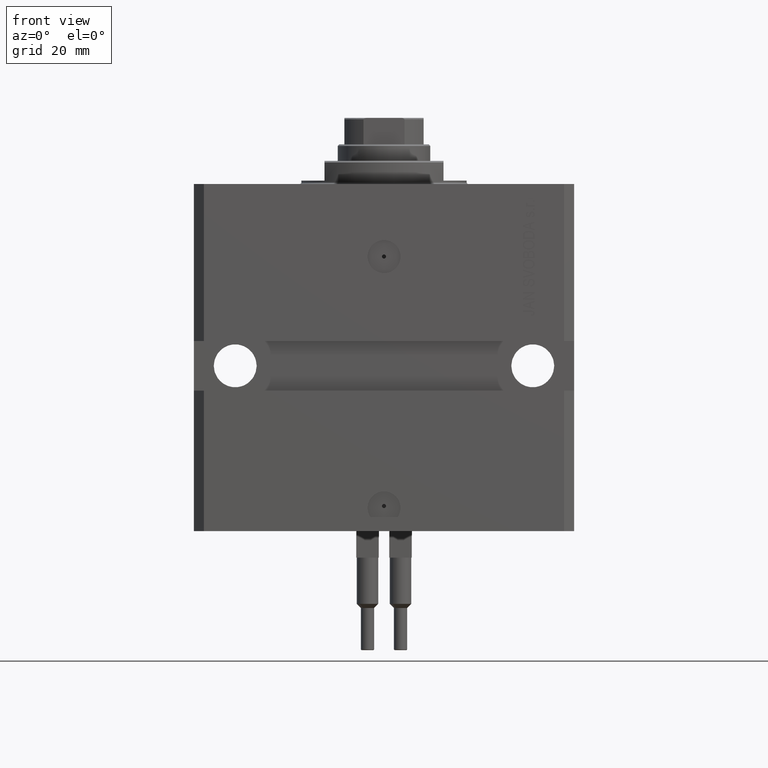
[diagram: clean part render]
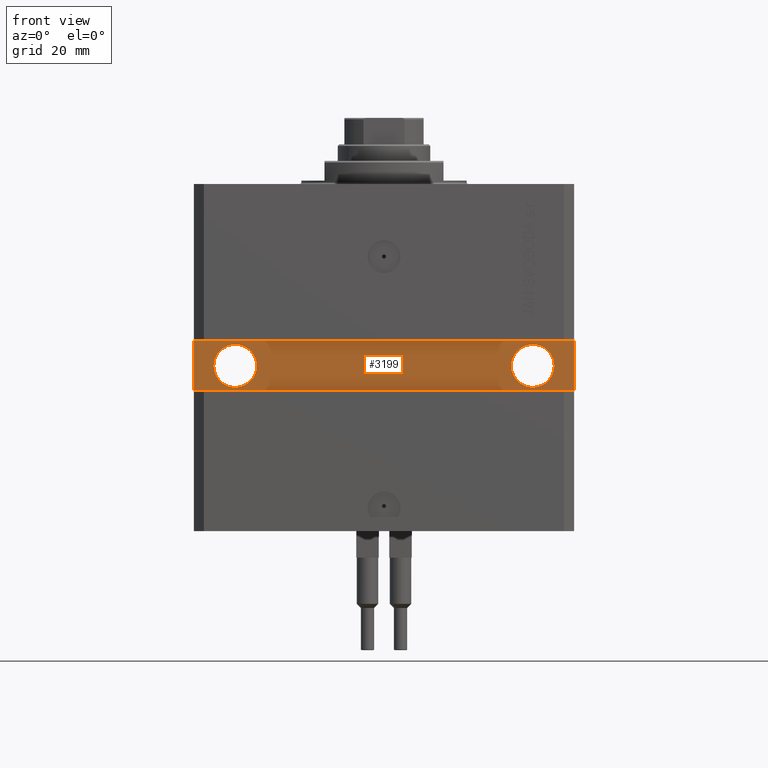
[diagram: same view with one face highlighted and labeled with its STEP entity id]
A machine part, front view. The second image highlights one B-rep face of the part: STEP entity #3199.
In plain terms, the highlighted planar face has unit normal (0, -1, 0).
Its self-contained STEP definition (entity closure, byte-faithful):
#254 = ORIENTED_EDGE ( 'NONE', *, *, #4930, .T. ) ;
#1879 = CARTESIAN_POINT ( 'NONE',  ( 57.50000000000000711, -39.99999999999998579, -47.49999999999997868 ) ) ;
#2351 = AXIS2_PLACEMENT_3D ( 'NONE', #29346, #28363, #40954 ) ;
#2442 = DIRECTION ( 'NONE',  ( 7.680174481697266334E-17, -1.000000000000000000, 1.232595164407830946E-32 ) ) ;
#2532 = FACE_BOUND ( 'NONE', #11934, .T. ) ;
#2552 = DIRECTION ( 'NONE',  ( 0.000000000000000000, 0.000000000000000000, 1.000000000000000000 ) ) ;
#2826 = DIRECTION ( 'NONE',  ( 1.000000000000000000, 0.000000000000000000, 0.000000000000000000 ) ) ;
#3199 = ADVANCED_FACE ( 'NONE', ( #2532, #12904, #48564 ), #13897, .T. ) ;
#3586 = CARTESIAN_POINT ( 'NONE',  ( -51.49999999999998579, -40.00000000000000000, -55.00000000000001421 ) ) ;
#3669 = DIRECTION ( 'NONE',  ( 1.000000000000000000, 0.000000000000000000, 0.000000000000000000 ) ) ;
#3949 = LINE ( 'NONE', #15321, #32099 ) ;
#4048 = VECTOR ( 'NONE', #5177, 1000.000000000000000 ) ;
#4930 = EDGE_CURVE ( 'NONE', #40381, #15670, #17521, .T. ) ;
#5177 = DIRECTION ( 'NONE',  ( 0.000000000000000000, 0.000000000000000000, -1.000000000000000000 ) ) ;
#6675 = AXIS2_PLACEMENT_3D ( 'NONE', #49220, #2442, #37323 ) ;
#7089 = EDGE_CURVE ( 'NONE', #24917, #32229, #33890, .T. ) ;
#7357 = ORIENTED_EDGE ( 'NONE', *, *, #7089, .F. ) ;
#7387 = EDGE_CURVE ( 'NONE', #32229, #24917, #37094, .T. ) ;
#7591 = CARTESIAN_POINT ( 'NONE',  ( -57.50000000000000711, -40.00000000000000000, -62.50000000000000000 ) ) ;
#8653 = CARTESIAN_POINT ( 'NONE',  ( -57.50000000000000711, -40.00000000000000000, -47.50000000000000711 ) ) ;
#8839 = AXIS2_PLACEMENT_3D ( 'NONE', #23118, #27171, #3669 ) ;
#10376 = ORIENTED_EDGE ( 'NONE', *, *, #7387, .F. ) ;
#11694 = CARTESIAN_POINT ( 'NONE',  ( 57.50000000000000711, -39.99999999999998579, -62.50000000000000000 ) ) ;
#11934 = EDGE_LOOP ( 'NONE', ( #16595, #34716 ) ) ;
#12904 = FACE_BOUND ( 'NONE', #19131, .T. ) ;
#13131 = EDGE_CURVE ( 'NONE', #31958, #47339, #45030, .T. ) ;
#13416 = ORIENTED_EDGE ( 'NONE', *, *, #13131, .T. ) ;
#13860 = EDGE_CURVE ( 'NONE', #15670, #31958, #34019, .T. ) ;
#13897 = PLANE ( 'NONE',  #2351 ) ;
#15097 = DIRECTION ( 'NONE',  ( 1.000000000000000000, 0.000000000000000000, 0.000000000000000000 ) ) ;
#15321 = CARTESIAN_POINT ( 'NONE',  ( 57.50000000000000711, -39.99999999999998579, -47.49999999999997868 ) ) ;
#15670 = VERTEX_POINT ( 'NONE', #7591 ) ;
#16595 = ORIENTED_EDGE ( 'NONE', *, *, #24904, .F. ) ;
#17521 = LINE ( 'NONE', #32466, #4048 ) ;
#18039 = CIRCLE ( 'NONE', #39063, 6.499999999999999112 ) ;
#19131 = EDGE_LOOP ( 'NONE', ( #10376, #7357 ) ) ;
#21882 = DIRECTION ( 'NONE',  ( 1.000000000000000000, 1.206764157201257045E-16, 0.000000000000000000 ) ) ;
#22036 = DIRECTION ( 'NONE',  ( 7.680174481697266334E-17, -1.000000000000000000, 1.232595164407830946E-32 ) ) ;
#23068 = EDGE_CURVE ( 'NONE', #44792, #26883, #40570, .T. ) ;
#23118 = CARTESIAN_POINT ( 'NONE',  ( -44.99999999999998579, -40.00000000000000000, -55.00000000000001421 ) ) ;
#23505 = CARTESIAN_POINT ( 'NONE',  ( 38.50000000000001421, -39.99999999999999289, -55.00000000000000000 ) ) ;
#24904 = EDGE_CURVE ( 'NONE', #26883, #44792, #18039, .T. ) ;
#24917 = VERTEX_POINT ( 'NONE', #3586 ) ;
#26883 = VERTEX_POINT ( 'NONE', #31813 ) ;
#27171 = DIRECTION ( 'NONE',  ( 1.101411730780568590E-16, -1.000000000000000000, 0.000000000000000000 ) ) ;
#27447 = EDGE_LOOP ( 'NONE', ( #43414, #13416, #40559, #254 ) ) ;
#28252 = AXIS2_PLACEMENT_3D ( 'NONE', #49758, #30783, #15097 ) ;
#28363 = DIRECTION ( 'NONE',  ( 1.206764157201257045E-16, -1.000000000000000000, 0.000000000000000000 ) ) ;
#29346 = CARTESIAN_POINT ( 'NONE',  ( 4.842396851142260860E-15, -39.99999999999999289, 0.000000000000000000 ) ) ;
#30630 = CARTESIAN_POINT ( 'NONE',  ( -38.49999999999998579, -40.00000000000000000, -55.00000000000001421 ) ) ;
#30783 = DIRECTION ( 'NONE',  ( 1.101411730780568590E-16, -1.000000000000000000, 0.000000000000000000 ) ) ;
#31745 = VECTOR ( 'NONE', #21882, 1000.000000000000000 ) ;
#31813 = CARTESIAN_POINT ( 'NONE',  ( 51.50000000000001421, -39.99999999999999289, -55.00000000000000000 ) ) ;
#31958 = VERTEX_POINT ( 'NONE', #11694 ) ;
#32099 = VECTOR ( 'NONE', #38341, 1000.000000000000000 ) ;
#32229 = VERTEX_POINT ( 'NONE', #30630 ) ;
#32466 = CARTESIAN_POINT ( 'NONE',  ( -57.50000000000000711, -40.00000000000000000, -47.50000000000000711 ) ) ;
#33562 = EDGE_CURVE ( 'NONE', #47339, #40381, #3949, .T. ) ;
#33890 = CIRCLE ( 'NONE', #28252, 6.499999999999999112 ) ;
#34019 = LINE ( 'NONE', #37806, #31745 ) ;
#34716 = ORIENTED_EDGE ( 'NONE', *, *, #23068, .F. ) ;
#36438 = CARTESIAN_POINT ( 'NONE',  ( 57.50000000000000711, -39.99999999999998579, -62.50000000000000000 ) ) ;
#37094 = CIRCLE ( 'NONE', #8839, 6.499999999999999112 ) ;
#37323 = DIRECTION ( 'NONE',  ( 1.000000000000000000, 0.000000000000000000, 0.000000000000000000 ) ) ;
#37806 = CARTESIAN_POINT ( 'NONE',  ( -57.50000000000000711, -40.00000000000000000, -62.50000000000000000 ) ) ;
#37963 = CARTESIAN_POINT ( 'NONE',  ( 45.00000000000001421, -39.99999999999999289, -55.00000000000000000 ) ) ;
#38341 = DIRECTION ( 'NONE',  ( -1.000000000000000000, -1.206764157201257045E-16, -2.413528314402514090E-16 ) ) ;
#39063 = AXIS2_PLACEMENT_3D ( 'NONE', #37963, #22036, #2826 ) ;
#40381 = VERTEX_POINT ( 'NONE', #8653 ) ;
#40559 = ORIENTED_EDGE ( 'NONE', *, *, #33562, .T. ) ;
#40570 = CIRCLE ( 'NONE', #6675, 6.499999999999999112 ) ;
#40954 = DIRECTION ( 'NONE',  ( 1.000000000000000000, 1.206764157201257045E-16, 0.000000000000000000 ) ) ;
#42169 = VECTOR ( 'NONE', #2552, 1000.000000000000000 ) ;
#43414 = ORIENTED_EDGE ( 'NONE', *, *, #13860, .T. ) ;
#44792 = VERTEX_POINT ( 'NONE', #23505 ) ;
#45030 = LINE ( 'NONE', #36438, #42169 ) ;
#47339 = VERTEX_POINT ( 'NONE', #1879 ) ;
#48564 = FACE_OUTER_BOUND ( 'NONE', #27447, .T. ) ;
#49220 = CARTESIAN_POINT ( 'NONE',  ( 45.00000000000001421, -39.99999999999999289, -55.00000000000000000 ) ) ;
#49758 = CARTESIAN_POINT ( 'NONE',  ( -44.99999999999998579, -40.00000000000000000, -55.00000000000001421 ) ) ;